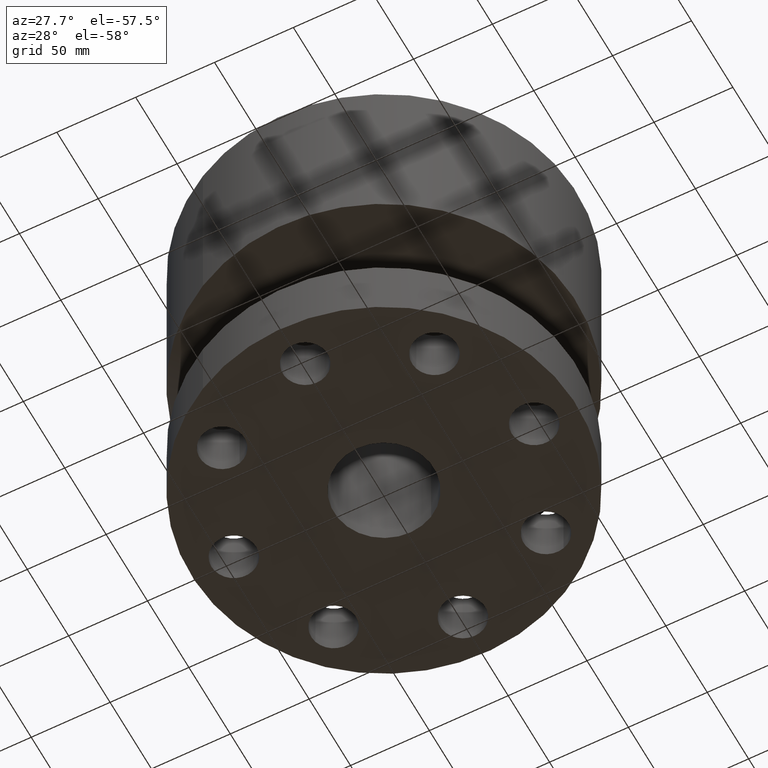
[diagram: clean part render]
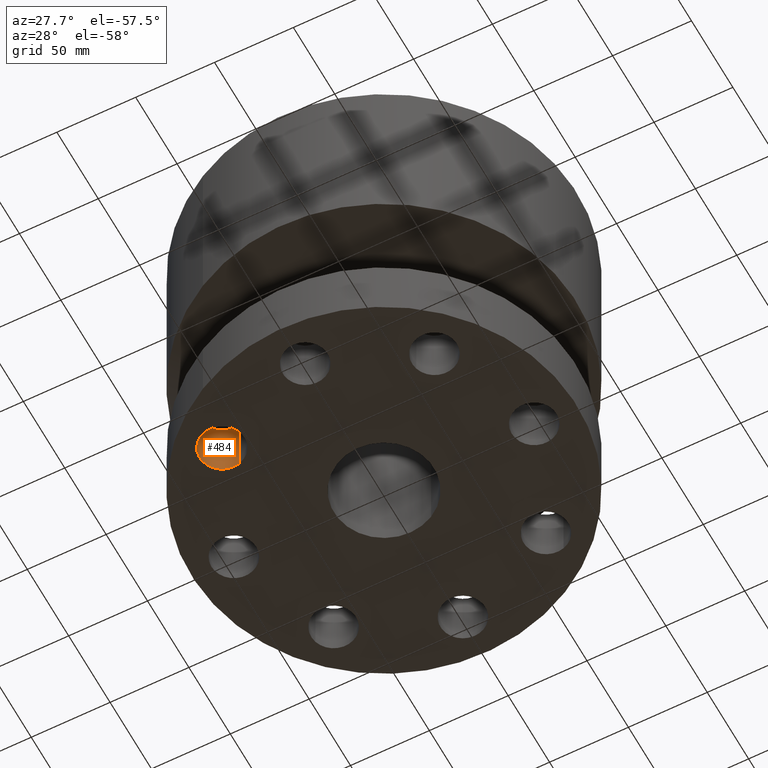
[diagram: same view with one face highlighted and labeled with its STEP entity id]
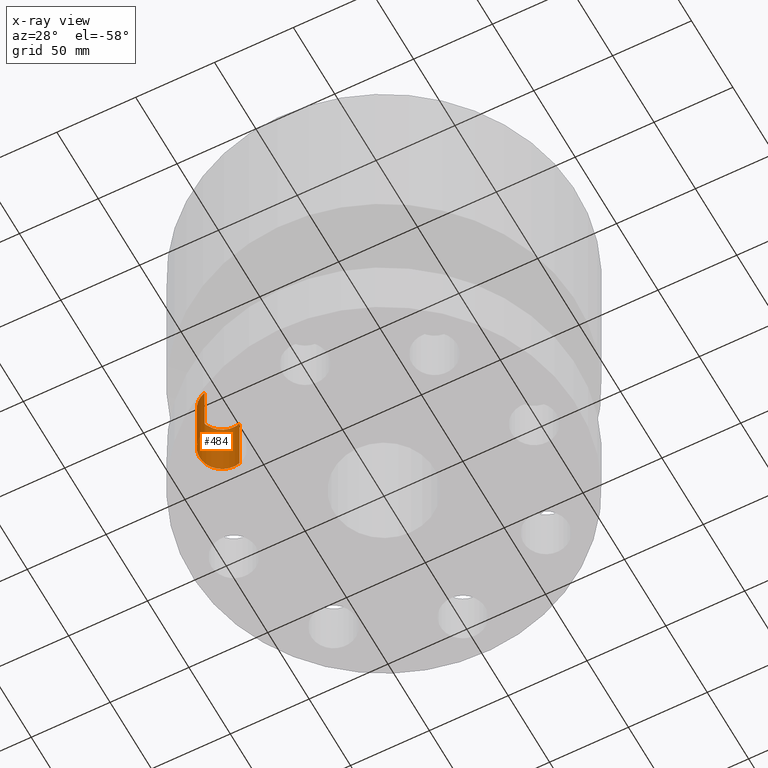
[diagram: x-ray of the same camera — body ghosted, the highlighted face saturated]
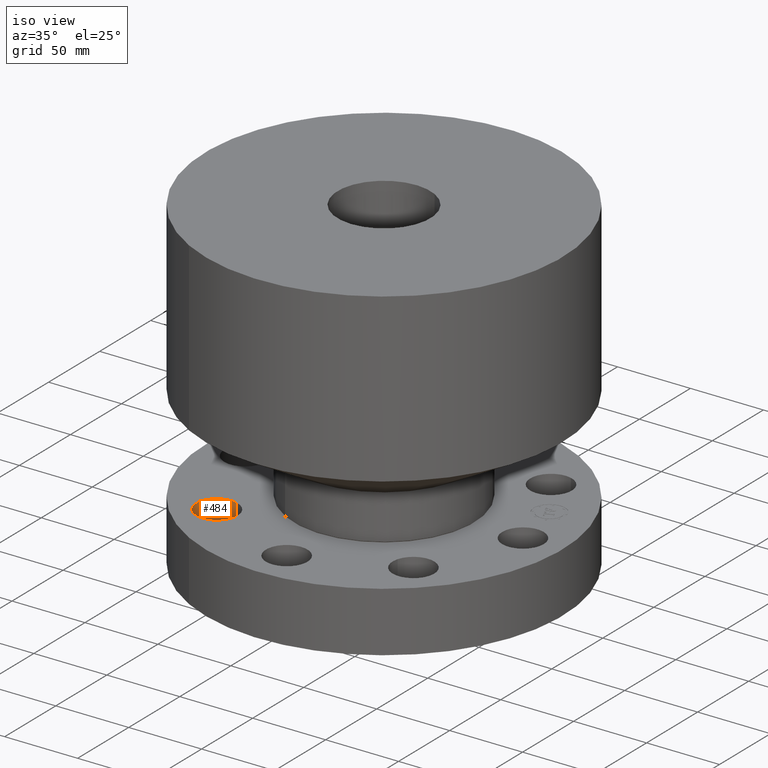
[diagram: same view with one face highlighted and labeled with its STEP entity id]
A machine part, auxiliary view. The second image highlights one B-rep face of the part: STEP entity #484.
The next image is the same camera in x-ray: the body ghosted, the highlighted face saturated — about 1% of this face is hidden behind the body in this view.
A second angle (iso view) of the same face is appended — the face is thin or edge-on in the first view.
In plain terms, the highlighted cylindrical surface (edge-blend (fillet) strip) has radius 14.224 mm, axis along (0, 0, 1).
Its self-contained STEP definition (entity closure, byte-faithful):
#172=AXIS2_PLACEMENT_3D('Circle Axis2P3D',#170,#171,$) ;
#457=AXIS2_PLACEMENT_3D('Cylinder Axis2P3D',#454,#455,#456) ;
#468=AXIS2_PLACEMENT_3D('Circle Axis2P3D',#466,#467,$) ;
#165=CARTESIAN_POINT('Vertex',(-2.49398829202,-2.11430263667,1.62000000001)) ;
#167=CARTESIAN_POINT('Vertex',(-2.8093125669,-3.18899822225,1.62000000001)) ;
#170=CARTESIAN_POINT('Axis2P3D Location',(-2.65165042946,-2.65165042946,1.62000000001)) ;
#454=CARTESIAN_POINT('Axis2P3D Location',(-2.65165042946,-2.65165042946,0.00393700787402)) ;
#459=CARTESIAN_POINT('Line Origine',(-2.8093125669,-3.18899822225,0.810000000003)) ;
#463=CARTESIAN_POINT('Vertex',(-2.8093125669,-3.18899822225,2.2401153548E-016)) ;
#466=CARTESIAN_POINT('Axis2P3D Location',(-2.65165042946,-2.65165042946,0.)) ;
#470=CARTESIAN_POINT('Vertex',(-2.49398829202,-2.11430263667,2.2401153548E-016)) ;
#473=CARTESIAN_POINT('Line Origine',(-2.49398829202,-2.11430263667,0.810000000003)) ;
#171=DIRECTION('Axis2P3D Direction',(0.,0.,-0.0393700787402)) ;
#455=DIRECTION('Axis2P3D Direction',(0.,0.,0.0393700787402)) ;
#456=DIRECTION('Axis2P3D XDirection',(-0.0110842335096,-0.0377775444876,0.)) ;
#460=DIRECTION('Vector Direction',(0.,0.,0.0393700787402)) ;
#467=DIRECTION('Axis2P3D Direction',(0.,0.,0.0393700787402)) ;
#474=DIRECTION('Vector Direction',(0.,0.,0.0393700787402)) ;
#461=VECTOR('Line Direction',#460,0.0393700787402) ;
#475=VECTOR('Line Direction',#474,0.0393700787402) ;
#479=ORIENTED_EDGE('',*,*,#465,.T.) ;
#480=ORIENTED_EDGE('',*,*,#472,.T.) ;
#481=ORIENTED_EDGE('',*,*,#477,.F.) ;
#482=ORIENTED_EDGE('',*,*,#174,.F.) ;
#484=ADVANCED_FACE('PartBody',(#483),#458,.F.) ;
#173=CIRCLE('generated circle',#172,0.560000000002) ;
#469=CIRCLE('generated circle',#468,0.560000000002) ;
#458=CYLINDRICAL_SURFACE('generated cylinder',#457,0.560000000002) ;
#174=EDGE_CURVE('',#168,#166,#173,.T.) ;
#465=EDGE_CURVE('',#168,#464,#462,.F.) ;
#472=EDGE_CURVE('',#464,#471,#469,.F.) ;
#477=EDGE_CURVE('',#166,#471,#476,.F.) ;
#478=EDGE_LOOP('',(#479,#480,#481,#482)) ;
#483=FACE_OUTER_BOUND('',#478,.T.) ;
#462=LINE('Line',#459,#461) ;
#476=LINE('Line',#473,#475) ;
#166=VERTEX_POINT('',#165) ;
#168=VERTEX_POINT('',#167) ;
#464=VERTEX_POINT('',#463) ;
#471=VERTEX_POINT('',#470) ;